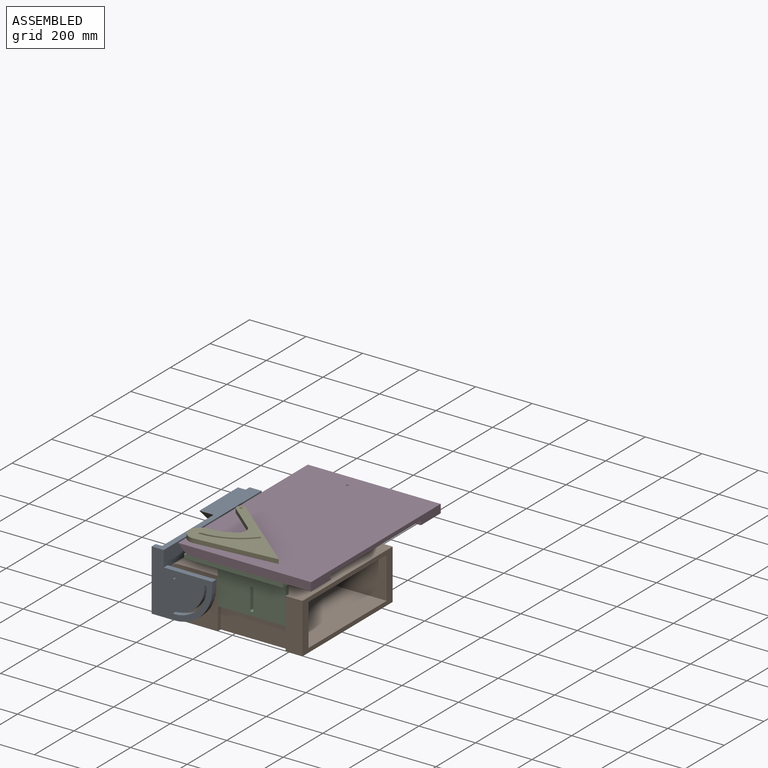
[diagram: assembled view]
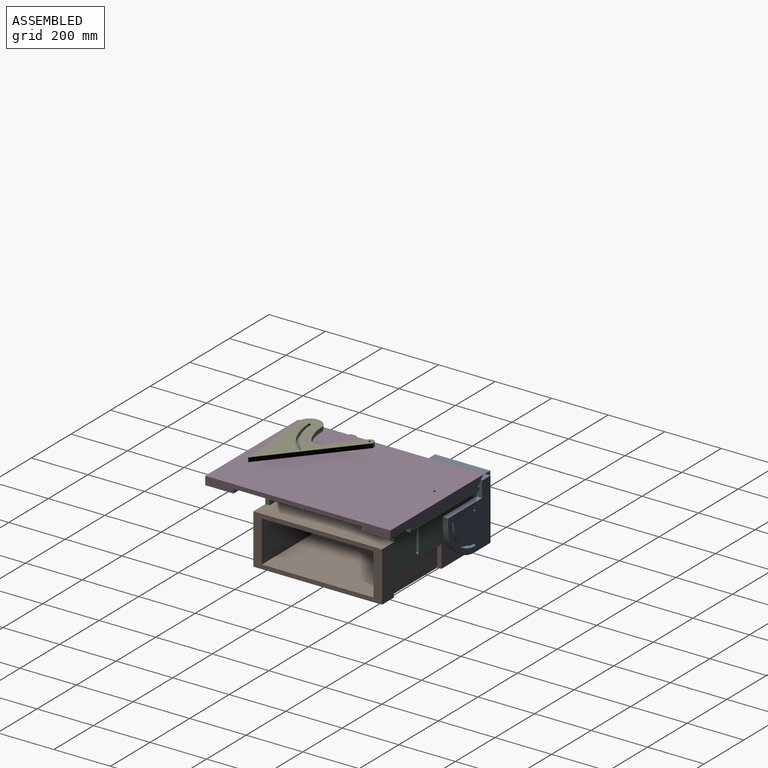
[diagram: assembled view, second angle]
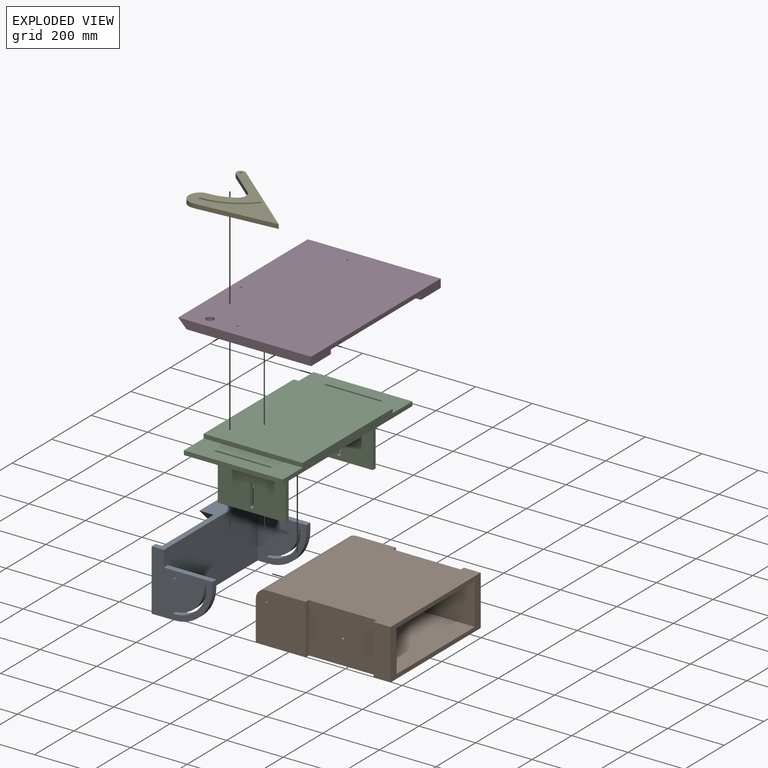
[diagram: exploded view]
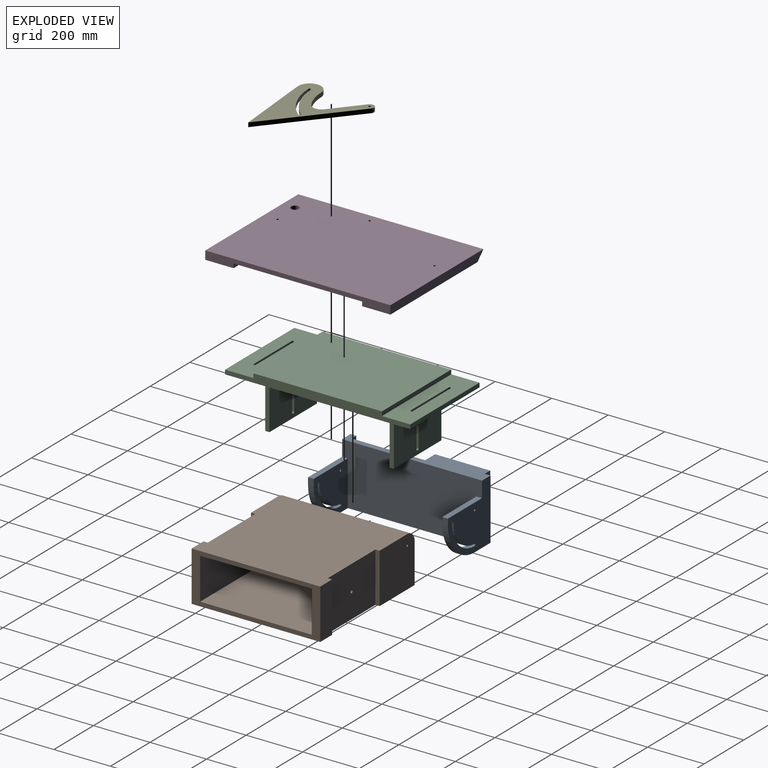
[diagram: exploded view, second angle]
ASSEMBLY  parts=5 mates=4
PART A: 40 faces, bbox 215x495x242 mm
  f0: plane 175x23mm, normal (0,1,0), area 4025mm2, adj f1,f7,f17,f22
  f1: plane 495x70mm, normal (1,0,0), area 20570mm2, adj f0,f3,f7,f14,f17,f27,f28,f36
  f2: plane 495x80mm, normal (-1,0,0), area 12300mm2, adj f3,f5,f6,f7,f13,f14,f18,f19
  f3: plane 215x215mm, normal (0,-1,0), area 31186.5mm2, adj f1,f2,f4,f7,f8,f9,f10,f11
  f4: plane 24x20mm, normal (0,0,-1), area 480mm2, adj f3,f5,f13,f15
  f5: plane 172x159mm, normal (0,1,0), area 21941.5mm2, adj f2,f4,f8,f9,f10,f11,f12,f13
  f6: plane 25x23mm, normal (0,1,0), area 575mm2, adj f2,f7,f18,f21
  f7: plane 215x20mm, normal (0,0,1), area 4300mm2, adj f0,f1,f2,f3,f6,f16
  f8: cylinder r=115mm len=115mm, axis (0,1,0), area 3612.8mm2, adj f3,f5,f9,f11
  f9: cylinder r=4mm len=20mm, axis (0,1,0), area 251.3mm2, adj f3,f5,f8,f10
  f10: cylinder r=107mm len=107mm, axis (0,1,0), area 3361.5mm2, adj f3,f5,f9,f11
  f11: cylinder r=4mm len=20mm, axis (0,1,0), area 251.3mm2, adj f3,f5,f8,f10
  f12: cylinder r=4mm len=20mm, axis (0,1,0), area 502.7mm2, adj f3,f5
  f13: cylinder r=135mm len=135mm, axis (0,1,0), area 4241.2mm2, adj f2,f3,f4,f5
  f14: plane 495x215mm, normal (0,0,-1), area 100065mm2, adj f1,f2,f3,f5,f15,f26,f27,f35
  f15: plane 172x20mm, normal (1,0,0), area 3440mm2, adj f3,f4,f5,f14
  f16: plane 15x7mm, normal (0,-1,0), area 105mm2, adj f7,f21,f22,f23
  f17: plane 455x175mm, normal (0,0,1), area 69193mm2, adj f0,f1,f22,f24,f37,f38
  f18: plane 455x25mm, normal (0,0,1), area 11375mm2, adj f2,f6,f19,f21
  f19: plane 25x23mm, normal (0,-1,0), area 575mm2, adj f2,f18,f21,f28
  f20: plane 15x7mm, normal (0,1,0), area 105mm2, adj f21,f22,f23,f28
  f21: plane 455x30mm, normal (-1,0,0), area 13650mm2, adj f6,f16,f18,f19,f20,f23
  f22: plane 455x30mm, normal (1,0,0), area 13650mm2, adj f0,f16,f17,f20,f23,f24
  f23: plane 455x15mm, normal (0,0,1), area 6825mm2, adj f16,f20,f21,f22
  f24: plane 111x23mm, normal (0,-1,0), area 2553mm2, adj f17,f22,f28,f37
  f25: plane 24x20mm, normal (0,0,-1), area 480mm2, adj f26,f27,f34,f35
  f26: plane 172x159mm, normal (0,-1,0), area 21941.5mm2, adj f2,f14,f25,f29,f30,f31,f32,f33
  f27: plane 215x215mm, normal (0,1,0), area 31186.5mm2, adj f1,f2,f14,f25,f28,f29,f30,f31
  f28: plane 215x20mm, normal (0,0,1), area 4300mm2, adj f1,f2,f19,f20,f24,f27,f36
  f29: cylinder r=115mm len=115mm, axis (0,1,0), area 3612.8mm2, adj f26,f27,f30,f32
  f30: cylinder r=4mm len=20mm, axis (0,1,0), area 251.3mm2, adj f26,f27,f29,f31
  f31: cylinder r=107mm len=107mm, axis (0,1,0), area 3361.5mm2, adj f26,f27,f30,f32
  f32: cylinder r=4mm len=20mm, axis (0,1,0), area 251.3mm2, adj f26,f27,f29,f31
  f33: cylinder r=4mm len=20mm, axis (0,1,0), area 502.7mm2, adj f26,f27
  f34: cylinder r=135mm len=135mm, axis (0,1,0), area 4241.2mm2, adj f2,f25,f26,f27
  f35: plane 172x20mm, normal (1,0,0), area 3440mm2, adj f14,f25,f26,f27
  f36: plane 64x27mm, normal (0,1,0), area 1728mm2, adj f1,f28,f37,f39
  f37: plane 131x50mm, normal (-1,0,0), area 6550mm2, adj f17,f24,f36,f38,f39
  f38: plane 64x64mm, normal (-0.71,-0.71,0), area 4525.5mm2, adj f1,f17,f37,f39
  f39: plane 195x64mm, normal (0,0,1), area 10432mm2, adj f1,f36,f37,f38
PART B: 23 faces, bbox 477x455x177 mm
  f0: cylinder r=5.5mm len=15mm, axis (0,-1,0), area 518.4mm2, adj f13,f19
  f1: plane 177x60mm, normal (0,-1,0), area 10620mm2, adj f5,f9,f10,f14
  f2: plane 177x177mm, normal (0,1,0), area 30984.9mm2, adj f4,f5,f6,f8,f10,f11
  f3: plane 177x177mm, normal (0,-1,0), area 30984.9mm2, adj f4,f5,f6,f8,f10,f15
  f4: plane 455x140mm, normal (-1,0,0), area 63700mm2, adj f2,f3,f5,f6
  f5: plane 477x455mm, normal (0,0,-1), area 209835mm2, adj f1,f2,f3,f4,f7,f9,f11,f12
  f6: cylinder r=37mm len=455mm, axis (0,1,0), area 26444.4mm2, adj f2,f3,f4,f10
  f7: plane 177x60mm, normal (0,1,0), area 10620mm2, adj f5,f9,f10,f12
  f8: cylinder r=4mm len=455mm, axis (0,1,0), area 11435.4mm2, adj f2,f3
  f9: plane 455x177mm, normal (1,0,0), area 22470mm2, adj f1,f5,f7,f10,f18,f19,f21,f22
  f10: plane 455x440mm, normal (0,0,1), area 193000mm2, adj f1,f2,f3,f6,f7,f9,f11,f12
  f11: plane 177x15mm, normal (1,0,0), area 2655mm2, adj f2,f5,f10,f13
  f12: plane 177x15mm, normal (-1,0,0), area 2655mm2, adj f5,f7,f10,f13
  f13: plane 240x177mm, normal (0,1,0), area 42385mm2, adj f0,f5,f10,f11,f12
  f14: plane 177x15mm, normal (-1,0,0), area 2655mm2, adj f1,f5,f10,f16
  f15: plane 177x15mm, normal (1,0,0), area 2655mm2, adj f3,f5,f10,f16
  f16: plane 240x177mm, normal (0,-1,0), area 42385mm2, adj f5,f10,f14,f15,f17
  f17: cylinder r=5.5mm len=15mm, axis (0,-1,0), area 518.4mm2, adj f16,f18
  f18: plane 416x147mm, normal (0,1,0), area 61057mm2, adj f9,f17,f20,f21,f22
  f19: plane 416x147mm, normal (0,-1,0), area 61057mm2, adj f0,f9,f20,f21,f22
  f20: plane 395x147mm, normal (1,0,0), area 58065mm2, adj f18,f19,f21,f22
  f21: plane 416x395mm, normal (0,0,-1), area 164320mm2, adj f9,f18,f19,f20
  f22: plane 416x395mm, normal (0,0,1), area 164320mm2, adj f9,f18,f19,f20
PART C: 44 faces, bbox 350x655x207 mm
  f0: plane 350x100mm, normal (0,0,1), area 33413.7mm2, adj f11,f13,f14,f33,f40,f41,f42,f43
  f1: plane 240x15mm, normal (0,0,-1), area 3600mm2, adj f2,f3,f4,f5
  f2: plane 177x15mm, normal (-1,0,0), area 2655mm2, adj f1,f3,f4,f16
  f3: plane 240x177mm, normal (0,1,0), area 41613.7mm2, adj f1,f2,f5,f16,f25,f26,f27,f28
  f4: plane 240x177mm, normal (0,-1,0), area 41613.7mm2, adj f1,f2,f5,f16,f25,f26,f27,f28
  f5: plane 177x15mm, normal (1,0,0), area 2655mm2, adj f1,f3,f4,f16
  f6: plane 240x15mm, normal (0,0,-1), area 3600mm2, adj f7,f8,f9,f10
  f7: plane 177x15mm, normal (-1,0,0), area 2655mm2, adj f6,f8,f10,f16
  f8: plane 240x177mm, normal (0,-1,0), area 41613.7mm2, adj f6,f7,f9,f16,f17,f18,f19,f20
  f9: plane 177x15mm, normal (1,0,0), area 2655mm2, adj f6,f8,f10,f16
  f10: plane 240x177mm, normal (0,1,0), area 41613.7mm2, adj f6,f7,f9,f16,f17,f18,f19,f20
  f11: plane 655x30mm, normal (1,0,0), area 16650mm2, adj f0,f12,f14,f15,f16,f33,f34,f35
  f12: plane 350x15mm, normal (0,1,0), area 5250mm2, adj f11,f13,f15,f16
  f13: plane 655x30mm, normal (-1,0,0), area 16650mm2, adj f0,f12,f14,f15,f16,f33,f34,f35
  f14: plane 350x15mm, normal (0,-1,0), area 5250mm2, adj f0,f11,f13,f16
  f15: plane 350x100mm, normal (0,0,1), area 33413.7mm2, adj f11,f12,f13,f34,f36,f37,f38,f39
  f16: plane 655x350mm, normal (0,0,-1), area 218877.5mm2, adj f2,f3,f4,f5,f7,f8,f9,f10
  f17: cylinder r=4mm len=15mm, axis (0,-1,0), area 94.2mm2, adj f8,f10,f18,f24
  f18: plane 15x3mm, normal (0,0,1), area 45mm2, adj f8,f10,f17,f19
  f19: cylinder r=4mm len=15mm, axis (0,-1,0), area 94.2mm2, adj f8,f10,f18,f20
  f20: plane 72x15mm, normal (1,0,0), area 1080mm2, adj f8,f10,f19,f21
  f21: cylinder r=4mm len=15mm, axis (0,-1,0), area 94.2mm2, adj f8,f10,f20,f22
  f22: plane 15x3mm, normal (0,0,-1), area 45mm2, adj f8,f10,f21,f23
  f23: cylinder r=4mm len=15mm, axis (0,-1,0), area 94.2mm2, adj f8,f10,f22,f24
  f24: plane 72x15mm, normal (-1,0,0), area 1080mm2, adj f8,f10,f17,f23
  f25: plane 72x15mm, normal (-1,0,0), area 1080mm2, adj f3,f4,f26,f32
  f26: cylinder r=4mm len=15mm, axis (0,-1,0), area 94.2mm2, adj f3,f4,f25,f27
  f27: plane 15x3mm, normal (0,0,-1), area 45mm2, adj f3,f4,f26,f28
  f28: cylinder r=4mm len=15mm, axis (0,-1,0), area 94.2mm2, adj f3,f4,f27,f29
  f29: plane 72x15mm, normal (1,0,0), area 1080mm2, adj f3,f4,f28,f30
  f30: cylinder r=4mm len=15mm, axis (0,-1,0), area 94.2mm2, adj f3,f4,f29,f31
  f31: plane 15x3mm, normal (0,0,1), area 45mm2, adj f3,f4,f30,f32
  f32: cylinder r=4mm len=15mm, axis (0,-1,0), area 94.2mm2, adj f3,f4,f25,f31
  f33: plane 350x15mm, normal (0,-1,0), area 5250mm2, adj f0,f11,f13,f35
  f34: plane 350x15mm, normal (0,1,0), area 5250mm2, adj f11,f13,f15,f35
  f35: plane 455x350mm, normal (0,0,1), area 159250mm2, adj f11,f13,f33,f34
  f36: cylinder r=4mm len=15mm, axis (0,0,1), area 188.5mm2, adj f15,f16,f37,f39
  f37: plane 192x15mm, normal (0,-1,0), area 2880mm2, adj f15,f16,f36,f38
  f38: cylinder r=4mm len=15mm, axis (0,0,1), area 188.5mm2, adj f15,f16,f37,f39
  f39: plane 192x15mm, normal (0,1,0), area 2880mm2, adj f15,f16,f36,f38
  f40: cylinder r=4mm len=15mm, axis (0,0,1), area 188.5mm2, adj f0,f16,f41,f43
  f41: plane 192x15mm, normal (0,-1,0), area 2880mm2, adj f0,f16,f40,f42
  f42: cylinder r=4mm len=15mm, axis (0,0,1), area 188.5mm2, adj f0,f16,f41,f43
  f43: plane 192x15mm, normal (0,1,0), area 2880mm2, adj f0,f16,f40,f42
PART D: 14 faces, bbox 470x655x30 mm
  f0: plane 470x30mm, normal (0,1,0), area 13650mm2, adj f1,f6,f7,f11
  f1: plane 655x470mm, normal (0,0,1), area 307063.4mm2, adj f0,f7,f8,f9,f10,f11,f12,f13
  f2: plane 440x100mm, normal (0,0,-1), area 43313.9mm2, adj f3,f7,f8,f9,f11,f13
  f3: plane 455x15mm, normal (0,1,0), area 6712.5mm2, adj f2,f4,f7,f11
  f4: plane 455x455mm, normal (0,0,-1), area 206974.7mm2, adj f3,f5,f7,f11,f12
  f5: plane 455x15mm, normal (0,-1,0), area 6712.5mm2, adj f4,f6,f7,f11
  f6: plane 440x100mm, normal (0,0,-1), area 43949.7mm2, adj f0,f5,f7,f10,f11
  f7: plane 655x30mm, normal (1,0,0), area 12825mm2, adj f0,f1,f2,f3,f4,f5,f6,f8
  f8: plane 470x30mm, normal (0,-1,0), area 13650mm2, adj f1,f2,f7,f11
  f9: cylinder r=4mm len=30mm, axis (0,0,-1), area 754mm2, adj f1,f2
  f10: cylinder r=4mm len=30mm, axis (0,0,-1), area 754mm2, adj f1,f6
  f11: plane 655x30mm, normal (-0.71,0,-0.71), area 18137.3mm2, adj f0,f1,f2,f3,f4,f5,f6,f8
  f12: cylinder r=4mm len=15mm, axis (0,0,1), area 377mm2, adj f1,f4
  f13: cylinder r=14.23mm len=30mm, axis (0,0,1), area 2681.5mm2, adj f1,f2
PART E: 15 faces, bbox 326.2x265x15 mm
  f0: plane 260.61x260.61mm, normal (0.71,0.71,0), area 5528.3mm2, adj f1,f12,f13,f14
  f1: cylinder r=15mm len=25.61mm, axis (0,0,-1), area 706.9mm2, adj f0,f2,f13,f14
  f2: plane 93.74x93.74mm, normal (-0.71,-0.71,0), area 1988.6mm2, adj f1,f3,f13,f14
  f3: cylinder r=30mm len=48.12mm, axis (0,0,-1), area 854.1mm2, adj f2,f4,f13,f14
  f4: cylinder r=170mm len=87.33mm, axis (0,0,-1), area 1350.6mm2, adj f3,f5,f13,f14
  f5: cylinder r=40mm len=79.9mm, axis (0,0,-1), area 1885mm2, adj f4,f6,f13,f14
  f6: cylinder r=250mm len=17.86mm, axis (0,0,-1), area 268.1mm2, adj f5,f12,f13,f14
  f7: cylinder r=214.5mm len=167mm, axis (0,0,-1), area 2757mm2, adj f8,f11,f13,f14
  f8: cylinder r=4.5mm len=15mm, axis (0,0,-1), area 212.1mm2, adj f7,f9,f13,f14
  f9: cylinder r=205.5mm len=159.99mm, axis (0,0,-1), area 2641.4mm2, adj f8,f11,f13,f14
  f10: cylinder r=4mm len=15mm, axis (0,0,-1), area 377mm2, adj f13,f14
  f11: cylinder r=4.5mm len=15mm, axis (0,0,-1), area 212.1mm2, adj f7,f9,f13,f14
  f12: plane 271.21x15mm, normal (0,-1,0), area 4068.2mm2, adj f0,f6,f13,f14
  f13: plane 326.21x265mm, normal (0,0,1), area 30531.3mm2, adj f0,f1,f2,f3,f4,f5,f6,f7
  f14: plane 326.21x265mm, normal (0,0,-1), area 30531.3mm2, adj f0,f1,f2,f3,f4,f5,f6,f7
PLACE A rot(axis=(0,-1,0),90deg) t=(-19.5,0,-74.5)mm
PLACE B at identity fixed
PLACE C t=(0,0,80)mm
PLACE D t=(-20,0,80)mm
PLACE E rot(axis=(0,0,1),5deg) t=(-9.18,-11.75,80)mm
MATE revolute B.f6 <-> A.f8  axis (0,1,0) through (27.5,-227.5,-47)mm
MATE slider B.f10 <-> C.f16  axis (0,0,1) through (167.5,-212.5,-10)mm
MATE revolute D.f12 <-> E.f1  axis (0,0,1) through (127.5,-53.71,115)mm
MATE slider C.f11 <-> D.f7  axis (1,0,0) through (467.5,-227.5,85)mm
